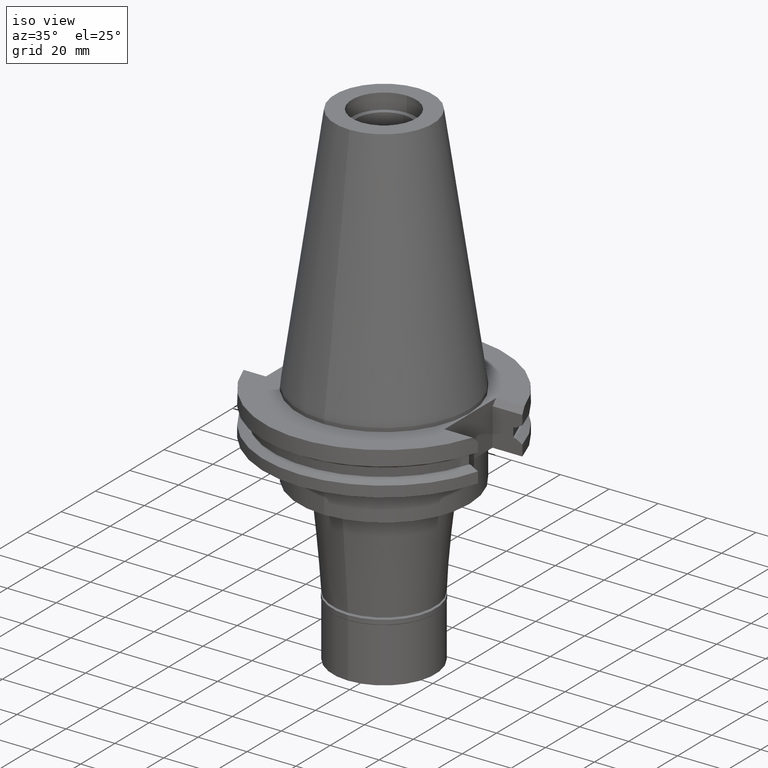
[diagram: clean part render]
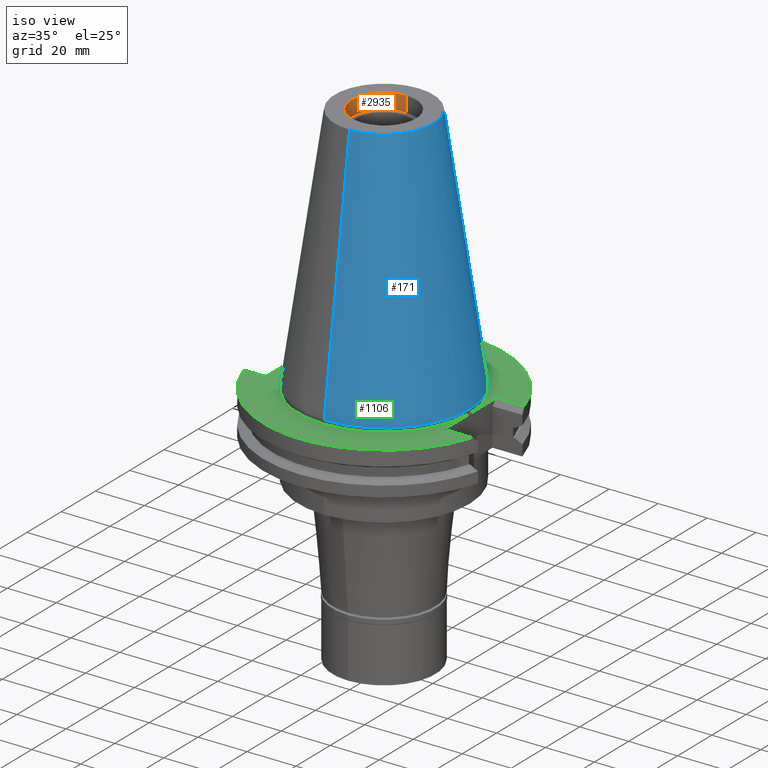
[diagram: same view with three faces highlighted in distinct colors, each labeled with its STEP entity id]
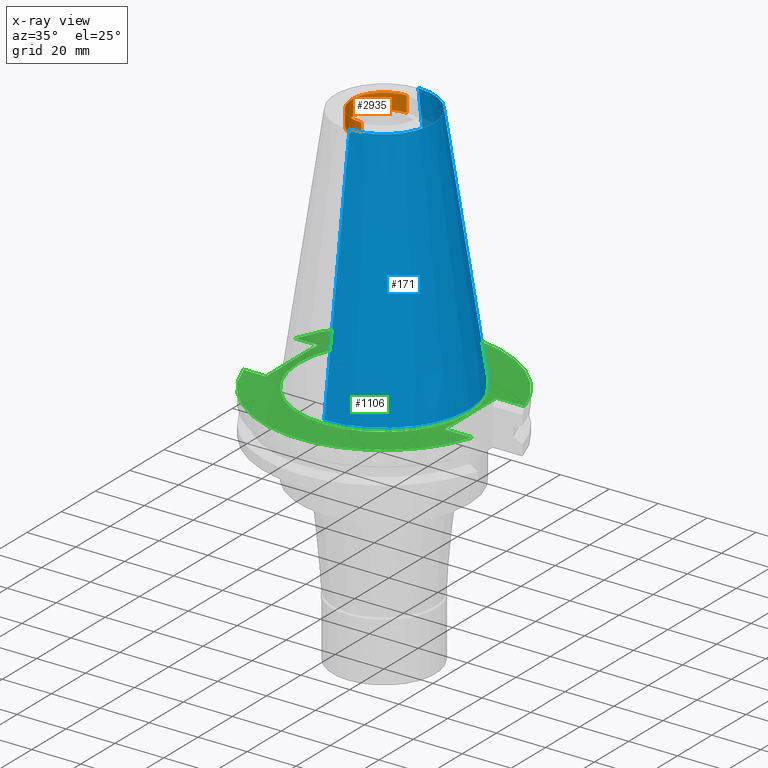
[diagram: x-ray of the same camera — body ghosted, the three highlighted faces saturated]
A machine part, iso view with three faces highlighted in distinct colors.
The next image is the same camera in x-ray (body ghosted, the three faces saturated) — at least one of them is partly hidden behind the body in this view.
Their STEP definitions:

[orange] entity #2935 — the highlighted cylindrical surface (partial cylindrical patch) has radius 13.115 mm, axis along (0, 0, -1).
#46 = CARTESIAN_POINT ( 'NONE',  ( 0.0000000000000000000, 13.11500000000000021, 101.5999999999999943 ) ) ;
#81 = CARTESIAN_POINT ( 'NONE',  ( 0.0000000000000000000, 13.11500000000000021, 95.25000000000000000 ) ) ;
#163 = EDGE_CURVE ( 'NONE', #972, #2710, #1890, .T. ) ;
#203 = ORIENTED_EDGE ( 'NONE', *, *, #258, .T. ) ;
#247 = LINE ( 'NONE', #3049, #781 ) ;
#258 = EDGE_CURVE ( 'NONE', #3193, #972, #3096, .T. ) ;
#319 = EDGE_CURVE ( 'NONE', #2710, #1024, #2130, .T. ) ;
#420 = CARTESIAN_POINT ( 'NONE',  ( 0.0000000000000000000, -13.11500000000000021, 95.25000000000000000 ) ) ;
#444 = ORIENTED_EDGE ( 'NONE', *, *, #319, .T. ) ;
#502 = AXIS2_PLACEMENT_3D ( 'NONE', #2725, #2201, #3159 ) ;
#615 = DIRECTION ( 'NONE',  ( 0.0000000000000000000, 0.0000000000000000000, 1.000000000000000000 ) ) ;
#706 = ORIENTED_EDGE ( 'NONE', *, *, #163, .T. ) ;
#781 = VECTOR ( 'NONE', #2051, 1000.000000000000000 ) ;
#792 = EDGE_LOOP ( 'NONE', ( #444, #2352, #203, #706 ) ) ;
#972 = VERTEX_POINT ( 'NONE', #1841 ) ;
#1024 = VERTEX_POINT ( 'NONE', #2132 ) ;
#1094 = VECTOR ( 'NONE', #615, 1000.000000000000000 ) ;
#1098 = AXIS2_PLACEMENT_3D ( 'NONE', #1180, #1794, #1194 ) ;
#1161 = CYLINDRICAL_SURFACE ( 'NONE', #502, 13.11500000000000021 ) ;
#1180 = CARTESIAN_POINT ( 'NONE',  ( 0.0000000000000000000, 2.588719636377999795E-14, 95.25000000000000000 ) ) ;
#1194 = DIRECTION ( 'NONE',  ( 0.0000000000000000000, -1.000000000000000000, 0.0000000000000000000 ) ) ;
#1389 = FACE_OUTER_BOUND ( 'NONE', #792, .T. ) ;
#1545 = DIRECTION ( 'NONE',  ( 0.0000000000000000000, 1.000000000000000000, 0.0000000000000000000 ) ) ;
#1573 = EDGE_CURVE ( 'NONE', #3193, #1024, #247, .T. ) ;
#1794 = DIRECTION ( 'NONE',  ( 0.0000000000000000000, 0.0000000000000000000, -1.000000000000000000 ) ) ;
#1841 = CARTESIAN_POINT ( 'NONE',  ( 0.0000000000000000000, 13.11500000000000021, 95.25000000000000000 ) ) ;
#1890 = LINE ( 'NONE', #81, #1094 ) ;
#2051 = DIRECTION ( 'NONE',  ( 0.0000000000000000000, 0.0000000000000000000, 1.000000000000000000 ) ) ;
#2064 = DIRECTION ( 'NONE',  ( 0.0000000000000000000, 0.0000000000000000000, 1.000000000000000000 ) ) ;
#2130 = CIRCLE ( 'NONE', #2463, 13.11500000000000021 ) ;
#2132 = CARTESIAN_POINT ( 'NONE',  ( 0.0000000000000000000, -13.11500000000000021, 101.5999999999999943 ) ) ;
#2201 = DIRECTION ( 'NONE',  ( 0.0000000000000000000, 0.0000000000000000000, -1.000000000000000000 ) ) ;
#2352 = ORIENTED_EDGE ( 'NONE', *, *, #1573, .F. ) ;
#2463 = AXIS2_PLACEMENT_3D ( 'NONE', #2821, #2064, #1545 ) ;
#2710 = VERTEX_POINT ( 'NONE', #46 ) ;
#2725 = CARTESIAN_POINT ( 'NONE',  ( 0.0000000000000000000, 2.588719636377999795E-14, 111.3849999999999909 ) ) ;
#2821 = CARTESIAN_POINT ( 'NONE',  ( 0.0000000000000000000, 2.588719636377999795E-14, 101.5999999999999943 ) ) ;
#2935 = ADVANCED_FACE ( 'NONE', ( #1389 ), #1161, .F. ) ;
#3049 = CARTESIAN_POINT ( 'NONE',  ( 0.0000000000000000000, -13.11500000000000021, 95.25000000000000000 ) ) ;
#3096 = CIRCLE ( 'NONE', #1098, 13.11500000000000021 ) ;
#3159 = DIRECTION ( 'NONE',  ( 0.0000000000000000000, -1.000000000000000000, 0.0000000000000000000 ) ) ;
#3193 = VERTEX_POINT ( 'NONE', #420 ) ;

[blue] entity #171 — the highlighted conical surface has half-angle 8.297 deg.
#16 = LINE ( 'NONE', #1035, #2073 ) ;
#106 = CARTESIAN_POINT ( 'NONE',  ( 0.0000000000000000000, -20.10832422388000040, 101.5999999999999943 ) ) ;
#149 = CARTESIAN_POINT ( 'NONE',  ( 0.0000000000000000000, -34.92499999999999716, 4.618527782441000579E-13 ) ) ;
#167 = CARTESIAN_POINT ( 'NONE',  ( 0.0000000000000000000, 1.846767373113999857E-14, 7.389644451905000534E-13 ) ) ;
#171 = ADVANCED_FACE ( 'NONE', ( #1141 ), #981, .T. ) ;
#313 = DIRECTION ( 'NONE',  ( 0.0000000000000000000, 0.0000000000000000000, -1.000000000000000000 ) ) ;
#324 = DIRECTION ( 'NONE',  ( 0.0000000000000000000, 0.0000000000000000000, -1.000000000000000000 ) ) ;
#491 = AXIS2_PLACEMENT_3D ( 'NONE', #167, #313, #2858 ) ;
#520 = EDGE_CURVE ( 'NONE', #1997, #2007, #1155, .T. ) ;
#633 = VERTEX_POINT ( 'NONE', #106 ) ;
#839 = CARTESIAN_POINT ( 'NONE',  ( 0.0000000000000000000, 20.10832422387000307, 101.5999999999999943 ) ) ;
#887 = CARTESIAN_POINT ( 'NONE',  ( 0.0000000000000000000, 1.846767373113999857E-14, 101.5999999999999943 ) ) ;
#979 = EDGE_CURVE ( 'NONE', #633, #2007, #16, .T. ) ;
#981 = CONICAL_SURFACE ( 'NONE', #2881, 27.51666211194000056, 0.1448125860318199565 ) ;
#1027 = EDGE_CURVE ( 'NONE', #3127, #1997, #2645, .T. ) ;
#1035 = CARTESIAN_POINT ( 'NONE',  ( 0.0000000000000000000, -20.10832422387000307, 101.5999999999999943 ) ) ;
#1141 = FACE_OUTER_BOUND ( 'NONE', #2284, .T. ) ;
#1155 = CIRCLE ( 'NONE', #491, 34.92499999999999716 ) ;
#1162 = AXIS2_PLACEMENT_3D ( 'NONE', #887, #324, #2166 ) ;
#1471 = ORIENTED_EDGE ( 'NONE', *, *, #979, .T. ) ;
#1651 = VECTOR ( 'NONE', #2661, 1000.000000000000114 ) ;
#1739 = CARTESIAN_POINT ( 'NONE',  ( 0.0000000000000000000, 20.10832422388000040, 101.5999999999999943 ) ) ;
#1806 = ORIENTED_EDGE ( 'NONE', *, *, #520, .F. ) ;
#1820 = ORIENTED_EDGE ( 'NONE', *, *, #1027, .F. ) ;
#1860 = DIRECTION ( 'NONE',  ( 0.0000000000000000000, -0.1443069799456937474, -0.9895329683941577192 ) ) ;
#1997 = VERTEX_POINT ( 'NONE', #2489 ) ;
#2007 = VERTEX_POINT ( 'NONE', #149 ) ;
#2073 = VECTOR ( 'NONE', #1860, 1000.000000000000114 ) ;
#2166 = DIRECTION ( 'NONE',  ( 0.0000000000000000000, 1.000000000000000000, 0.0000000000000000000 ) ) ;
#2181 = DIRECTION ( 'NONE',  ( 0.0000000000000000000, -1.000000000000000000, 0.0000000000000000000 ) ) ;
#2284 = EDGE_LOOP ( 'NONE', ( #3329, #1471, #1806, #1820 ) ) ;
#2489 = CARTESIAN_POINT ( 'NONE',  ( 0.0000000000000000000, 34.92499999999999716, 4.618527782441000579E-13 ) ) ;
#2645 = LINE ( 'NONE', #839, #1651 ) ;
#2661 = DIRECTION ( 'NONE',  ( 0.0000000000000000000, 0.1443069799456937474, -0.9895329683941577192 ) ) ;
#2675 = CARTESIAN_POINT ( 'NONE',  ( 0.0000000000000000000, 1.846767373113999857E-14, 50.79999999999999716 ) ) ;
#2858 = DIRECTION ( 'NONE',  ( 0.0000000000000000000, 1.000000000000000000, 0.0000000000000000000 ) ) ;
#2881 = AXIS2_PLACEMENT_3D ( 'NONE', #2675, #2920, #2181 ) ;
#2920 = DIRECTION ( 'NONE',  ( 0.0000000000000000000, 0.0000000000000000000, -1.000000000000000000 ) ) ;
#2922 = EDGE_CURVE ( 'NONE', #3127, #633, #3163, .T. ) ;
#3127 = VERTEX_POINT ( 'NONE', #1739 ) ;
#3163 = CIRCLE ( 'NONE', #1162, 20.10832422388000040 ) ;
#3329 = ORIENTED_EDGE ( 'NONE', *, *, #2922, .T. ) ;

[green] entity #1106 — the highlighted planar face has unit normal (0, 0, -1).
#32 = FACE_BOUND ( 'NONE', #268, .T. ) ;
#133 = EDGE_CURVE ( 'NONE', #811, #1294, #2184, .T. ) ;
#194 = ORIENTED_EDGE ( 'NONE', *, *, #210, .F. ) ;
#210 = EDGE_CURVE ( 'NONE', #655, #1740, #1673, .T. ) ;
#268 = EDGE_LOOP ( 'NONE', ( #2347, #1220 ) ) ;
#343 = AXIS2_PLACEMENT_3D ( 'NONE', #2223, #2484, #1184 ) ;
#347 = DIRECTION ( 'NONE',  ( 0.0000000000000000000, -1.000000000000000000, 0.0000000000000000000 ) ) ;
#354 = LINE ( 'NONE', #2502, #2822 ) ;
#371 = EDGE_CURVE ( 'NONE', #1515, #1294, #2323, .T. ) ;
#419 = EDGE_CURVE ( 'NONE', #1695, #2291, #3155, .T. ) ;
#500 = CARTESIAN_POINT ( 'NONE',  ( 35.27000000000000313, 15.15499999999999936, -1.500000000000000000 ) ) ;
#532 = ORIENTED_EDGE ( 'NONE', *, *, #133, .F. ) ;
#550 = VERTEX_POINT ( 'NONE', #844 ) ;
#551 = DIRECTION ( 'NONE',  ( 0.0000000000000000000, 0.0000000000000000000, 1.000000000000000000 ) ) ;
#569 = EDGE_CURVE ( 'NONE', #2561, #811, #354, .T. ) ;
#595 = DIRECTION ( 'NONE',  ( 0.0000000000000000000, 1.000000000000000000, 0.0000000000000000000 ) ) ;
#606 = CARTESIAN_POINT ( 'NONE',  ( -46.82089417396999664, -15.15499999999999936, -1.500000000000000000 ) ) ;
#610 = EDGE_LOOP ( 'NONE', ( #1677, #532, #2841, #2707, #2870, #750, #194, #3342 ) ) ;
#645 = CARTESIAN_POINT ( 'NONE',  ( 35.27000000000000313, -15.15499999999999936, -1.500000000000000000 ) ) ;
#652 = VERTEX_POINT ( 'NONE', #606 ) ;
#655 = VERTEX_POINT ( 'NONE', #645 ) ;
#677 = CIRCLE ( 'NONE', #343, 49.21249999999999858 ) ;
#709 = CARTESIAN_POINT ( 'NONE',  ( -37.67999999999999972, -15.15499999999999936, -1.500000000000000000 ) ) ;
#746 = EDGE_CURVE ( 'NONE', #550, #2561, #3013, .T. ) ;
#750 = ORIENTED_EDGE ( 'NONE', *, *, #2436, .F. ) ;
#769 = VECTOR ( 'NONE', #2353, 1000.000000000000000 ) ;
#802 = CARTESIAN_POINT ( 'NONE',  ( 0.0000000000000000000, 2.588719636377999795E-14, -1.500000000000000000 ) ) ;
#811 = VERTEX_POINT ( 'NONE', #2001 ) ;
#844 = CARTESIAN_POINT ( 'NONE',  ( -37.67999999999999972, -15.15499999999999936, -1.500000000000000000 ) ) ;
#884 = AXIS2_PLACEMENT_3D ( 'NONE', #802, #3362, #3111 ) ;
#970 = EDGE_CURVE ( 'NONE', #1515, #655, #1807, .T. ) ;
#1025 = DIRECTION ( 'NONE',  ( 1.000000000000000000, 0.0000000000000000000, 0.0000000000000000000 ) ) ;
#1062 = EDGE_CURVE ( 'NONE', #2291, #1695, #2350, .T. ) ;
#1073 = CARTESIAN_POINT ( 'NONE',  ( 0.0000000000000000000, 1.206277097159999845E-14, -1.500000000000000000 ) ) ;
#1093 = CARTESIAN_POINT ( 'NONE',  ( 0.0000000000000000000, 34.92499999999999716, -1.500000000000000000 ) ) ;
#1106 = ADVANCED_FACE ( 'NONE', ( #1371, #32 ), #2406, .F. ) ;
#1172 = DIRECTION ( 'NONE',  ( -1.000000000000000000, -1.107685286787000022E-14, 0.0000000000000000000 ) ) ;
#1184 = DIRECTION ( 'NONE',  ( 0.0000000000000000000, -1.000000000000000000, 0.0000000000000000000 ) ) ;
#1211 = VECTOR ( 'NONE', #1025, 1000.000000000000000 ) ;
#1220 = ORIENTED_EDGE ( 'NONE', *, *, #419, .F. ) ;
#1256 = VECTOR ( 'NONE', #2708, 1000.000000000000000 ) ;
#1294 = VERTEX_POINT ( 'NONE', #1730 ) ;
#1371 = FACE_OUTER_BOUND ( 'NONE', #610, .T. ) ;
#1489 = DIRECTION ( 'NONE',  ( 0.0000000000000000000, 1.000000000000000000, 0.0000000000000000000 ) ) ;
#1515 = VERTEX_POINT ( 'NONE', #500 ) ;
#1608 = CARTESIAN_POINT ( 'NONE',  ( 35.27000000000000313, 15.15499999999999936, -1.500000000000000000 ) ) ;
#1673 = LINE ( 'NONE', #2906, #1256 ) ;
#1677 = ORIENTED_EDGE ( 'NONE', *, *, #371, .T. ) ;
#1695 = VERTEX_POINT ( 'NONE', #2394 ) ;
#1730 = CARTESIAN_POINT ( 'NONE',  ( 46.82089417396999664, 15.15499999999999936, -1.500000000000000000 ) ) ;
#1740 = VERTEX_POINT ( 'NONE', #2899 ) ;
#1807 = LINE ( 'NONE', #1608, #769 ) ;
#2001 = CARTESIAN_POINT ( 'NONE',  ( -46.82089417396999664, 15.15499999999999936, -1.500000000000000000 ) ) ;
#2104 = CARTESIAN_POINT ( 'NONE',  ( 0.0000000000000000000, 2.588719636377999795E-14, -1.500000000000000000 ) ) ;
#2151 = CARTESIAN_POINT ( 'NONE',  ( 0.0000000000000000000, 2.588719636377999795E-14, -1.500000000000000000 ) ) ;
#2184 = CIRCLE ( 'NONE', #3042, 49.21249999999999858 ) ;
#2223 = CARTESIAN_POINT ( 'NONE',  ( 0.0000000000000000000, 2.588719636377999795E-14, -1.500000000000000000 ) ) ;
#2279 = DIRECTION ( 'NONE',  ( -1.000000000000000000, 1.107685286787000022E-14, 0.0000000000000000000 ) ) ;
#2291 = VERTEX_POINT ( 'NONE', #1093 ) ;
#2323 = LINE ( 'NONE', #3349, #1211 ) ;
#2347 = ORIENTED_EDGE ( 'NONE', *, *, #1062, .F. ) ;
#2350 = CIRCLE ( 'NONE', #884, 34.92499999999999716 ) ;
#2353 = DIRECTION ( 'NONE',  ( 0.0000000000000000000, -1.000000000000000000, 0.0000000000000000000 ) ) ;
#2394 = CARTESIAN_POINT ( 'NONE',  ( 0.0000000000000000000, -34.92499999999999716, -1.500000000000000000 ) ) ;
#2406 = PLANE ( 'NONE',  #3308 ) ;
#2436 = EDGE_CURVE ( 'NONE', #1740, #652, #677, .T. ) ;
#2457 = DIRECTION ( 'NONE',  ( 0.0000000000000000000, 0.0000000000000000000, -1.000000000000000000 ) ) ;
#2484 = DIRECTION ( 'NONE',  ( 0.0000000000000000000, 0.0000000000000000000, -1.000000000000000000 ) ) ;
#2502 = CARTESIAN_POINT ( 'NONE',  ( -37.67999999999999972, 15.15499999999999936, -1.500000000000000000 ) ) ;
#2519 = AXIS2_PLACEMENT_3D ( 'NONE', #2104, #551, #2632 ) ;
#2561 = VERTEX_POINT ( 'NONE', #3328 ) ;
#2632 = DIRECTION ( 'NONE',  ( 0.0000000000000000000, -1.000000000000000000, 0.0000000000000000000 ) ) ;
#2707 = ORIENTED_EDGE ( 'NONE', *, *, #746, .F. ) ;
#2708 = DIRECTION ( 'NONE',  ( 1.000000000000000000, 0.0000000000000000000, 0.0000000000000000000 ) ) ;
#2771 = LINE ( 'NONE', #3283, #3169 ) ;
#2782 = VECTOR ( 'NONE', #1489, 1000.000000000000000 ) ;
#2822 = VECTOR ( 'NONE', #1172, 1000.000000000000000 ) ;
#2841 = ORIENTED_EDGE ( 'NONE', *, *, #569, .F. ) ;
#2870 = ORIENTED_EDGE ( 'NONE', *, *, #3070, .T. ) ;
#2891 = DIRECTION ( 'NONE',  ( 0.0000000000000000000, 0.0000000000000000000, -1.000000000000000000 ) ) ;
#2899 = CARTESIAN_POINT ( 'NONE',  ( 46.82089417396999664, -15.15499999999999936, -1.500000000000000000 ) ) ;
#2906 = CARTESIAN_POINT ( 'NONE',  ( 35.27000000000000313, -15.15499999999999936, -1.500000000000000000 ) ) ;
#3013 = LINE ( 'NONE', #709, #2782 ) ;
#3042 = AXIS2_PLACEMENT_3D ( 'NONE', #2151, #2457, #595 ) ;
#3070 = EDGE_CURVE ( 'NONE', #550, #652, #2771, .T. ) ;
#3111 = DIRECTION ( 'NONE',  ( 0.0000000000000000000, 1.000000000000000000, 0.0000000000000000000 ) ) ;
#3155 = CIRCLE ( 'NONE', #2519, 34.92499999999999716 ) ;
#3169 = VECTOR ( 'NONE', #2279, 1000.000000000000000 ) ;
#3283 = CARTESIAN_POINT ( 'NONE',  ( -37.67999999999999972, -15.15499999999999936, -1.500000000000000000 ) ) ;
#3308 = AXIS2_PLACEMENT_3D ( 'NONE', #1073, #2891, #347 ) ;
#3328 = CARTESIAN_POINT ( 'NONE',  ( -37.67999999999999972, 15.15499999999999936, -1.500000000000000000 ) ) ;
#3342 = ORIENTED_EDGE ( 'NONE', *, *, #970, .F. ) ;
#3349 = CARTESIAN_POINT ( 'NONE',  ( 35.27000000000000313, 15.15499999999999936, -1.500000000000000000 ) ) ;
#3362 = DIRECTION ( 'NONE',  ( 0.0000000000000000000, 0.0000000000000000000, 1.000000000000000000 ) ) ;